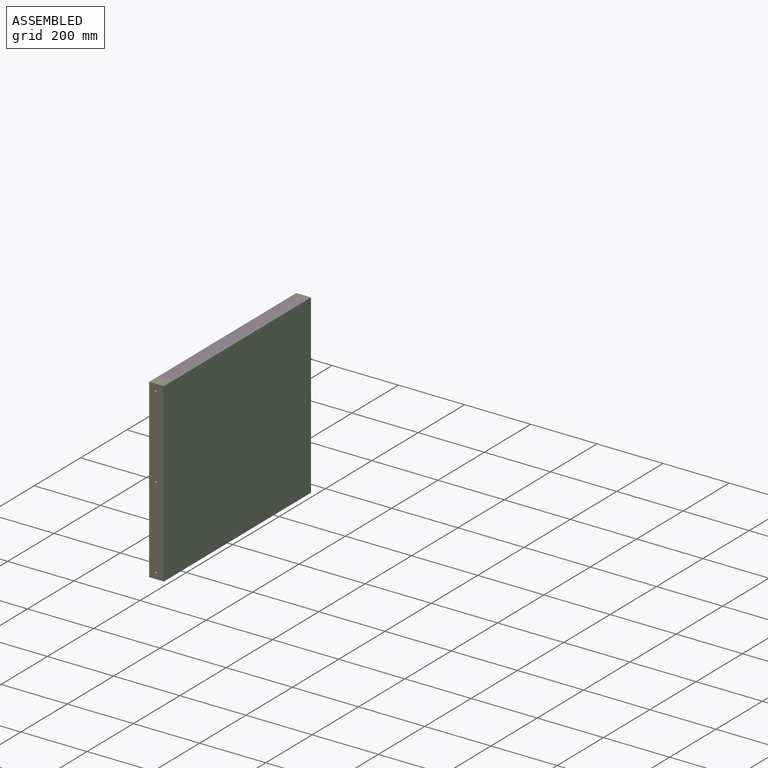
[diagram: assembled view]
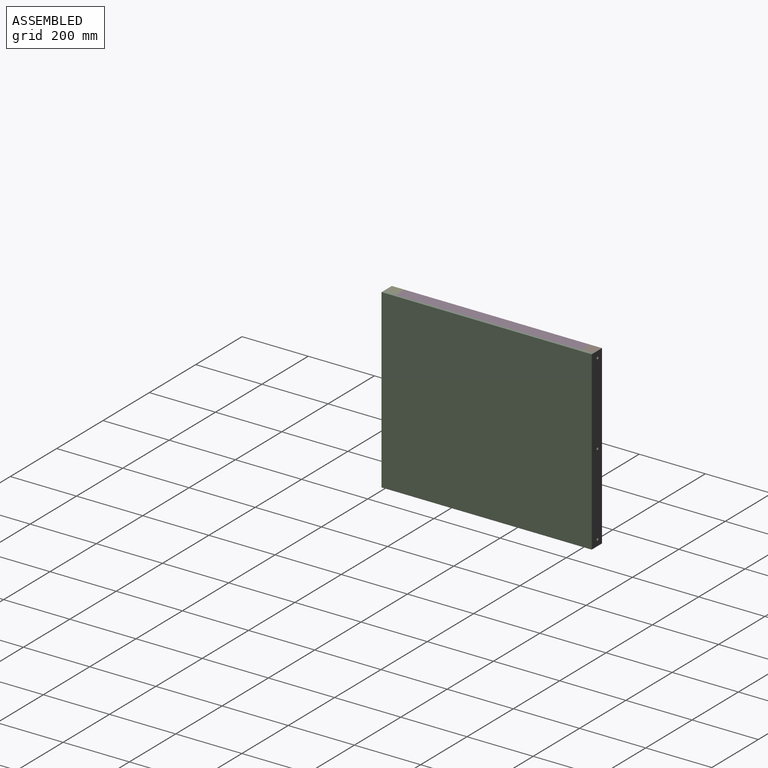
[diagram: assembled view, second angle]
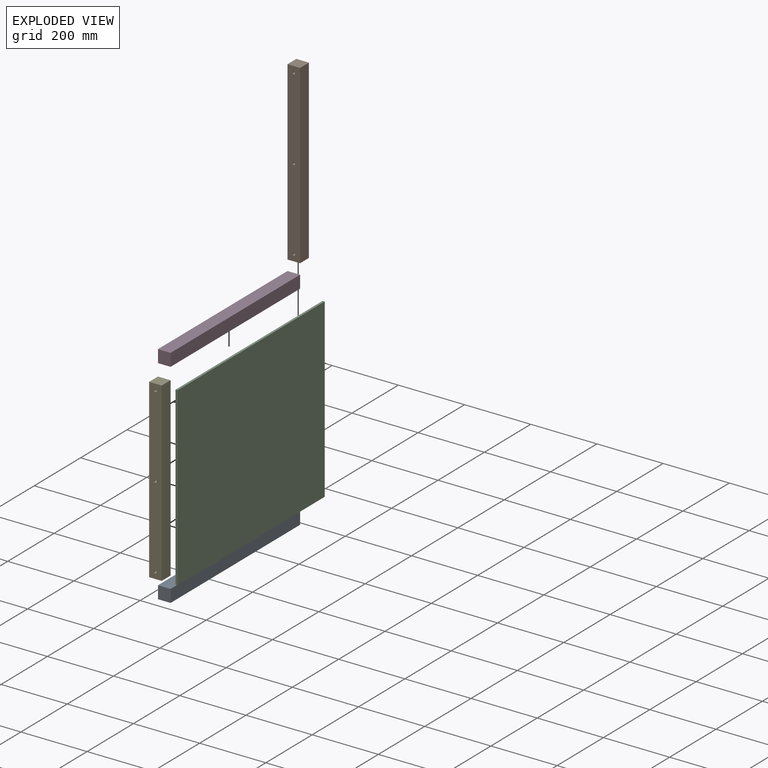
[diagram: exploded view]
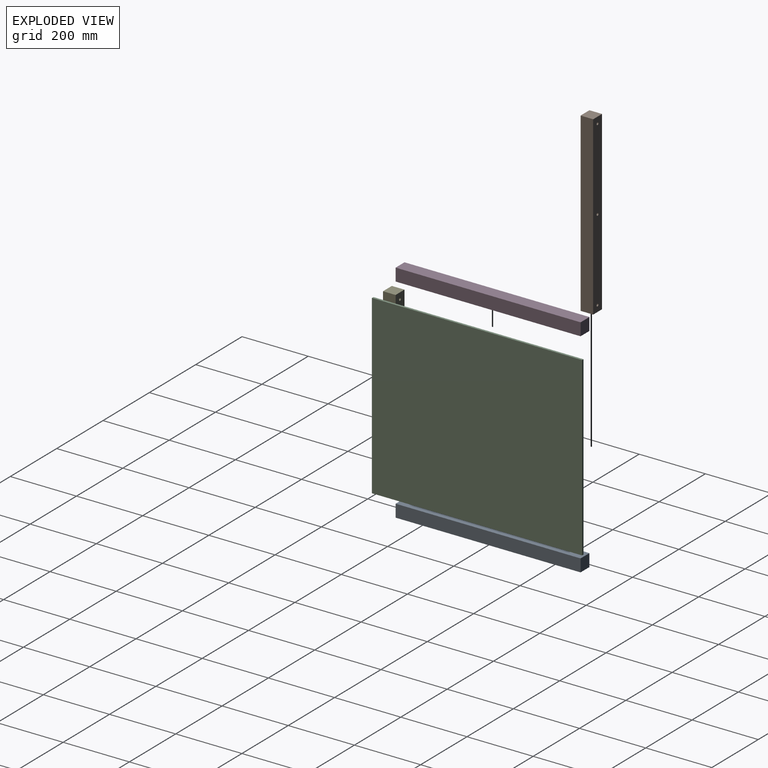
[diagram: exploded view, second angle]
ASSEMBLY  parts=5 mates=4
PART A: 6 faces, bbox 38.1x38.1x558.8 mm
  f0: plane 558.8x38.1mm, normal (0,-1,0), area 21290.3mm2, adj f1,f3,f4,f5
  f1: plane 558.8x38.1mm, normal (1,0,0), area 21290.3mm2, adj f0,f2,f4,f5
  f2: plane 558.8x38.1mm, normal (0,1,0), area 21290.3mm2, adj f1,f3,f4,f5
  f3: plane 558.8x38.1mm, normal (-1,0,0), area 21290.3mm2, adj f0,f2,f4,f5
  f4: plane 38.1x38.1mm, normal (0,0,1), area 1451.6mm2, adj f0,f1,f2,f3
  f5: plane 38.1x38.1mm, normal (0,0,-1), area 1451.6mm2, adj f0,f1,f2,f3
PART B: 9 faces, bbox 38.1x38.1x533.4 mm
  f0: plane 533.4x38.1mm, normal (-1,0,0), area 20174.1mm2, adj f2,f3,f4,f5,f6,f7,f8
  f1: plane 533.4x38.1mm, normal (1,0,0), area 20174.1mm2, adj f2,f3,f4,f5,f6,f7,f8
  f2: plane 533.4x38.1mm, normal (0,-1,0), area 20322.5mm2, adj f0,f1,f4,f5
  f3: plane 533.4x38.1mm, normal (0,1,0), area 20322.5mm2, adj f0,f1,f4,f5
  f4: plane 38.1x38.1mm, normal (0,0,1), area 1451.6mm2, adj f0,f1,f2,f3
  f5: plane 38.1x38.1mm, normal (0,0,-1), area 1451.6mm2, adj f0,f1,f2,f3
  f6: cylinder r=3.97mm len=38.1mm, axis (-1,0,0), area 950.1mm2, adj f0,f1
  f7: cylinder r=3.97mm len=38.1mm, axis (-1,0,0), area 950.1mm2, adj f0,f1
  f8: cylinder r=3.97mm len=38.1mm, axis (-1,0,0), area 950.1mm2, adj f0,f1
PART C: 6 faces, bbox 533.4x635x6.4 mm
  f0: plane 635x6.35mm, normal (-1,0,0), area 4032.3mm2, adj f1,f3,f4,f5
  f1: plane 533.4x6.35mm, normal (0,-1,0), area 3387.1mm2, adj f0,f2,f4,f5
  f2: plane 635x6.35mm, normal (1,0,0), area 4032.3mm2, adj f1,f3,f4,f5
  f3: plane 533.4x6.35mm, normal (0,1,0), area 3387.1mm2, adj f0,f2,f4,f5
  f4: plane 635x533.4mm, normal (0,0,1), area 338709mm2, adj f0,f1,f2,f3
  f5: plane 635x533.4mm, normal (0,0,-1), area 338709mm2, adj f0,f1,f2,f3
PART D: same geometry as A
PART E: same geometry as B
PLACE A rot(axis=(1,0,0),90deg) t=(579.51,-275.48,266.44)mm
PLACE B rot(axis=(0,0,-1),90deg) t=(697.13,-256.43,82.67)mm
PLACE C rot(axis=(0,1,0),90deg) t=(716.18,-738.25,891.13)mm
PLACE D rot(axis=(1,0,0),90deg) t=(579.51,-275.48,761.74)mm
PLACE E rot(axis=(0,0,-1),90deg) t=(697.13,-853.33,82.67)mm
MATE fastened D.f2 <-> E.f4  axis (0,0,1) through (697.13,-834.28,616.07)mm
MATE fastened E.f3 <-> C.f5  axis (1,0,0) through (716.18,-872.38,82.67)mm
MATE fastened B.f4 <-> D.f2  axis (0,0,1) through (697.13,-275.48,616.07)mm
MATE fastened A.f0 <-> E.f5  axis (0,0,-1) through (697.13,-834.28,82.67)mm
